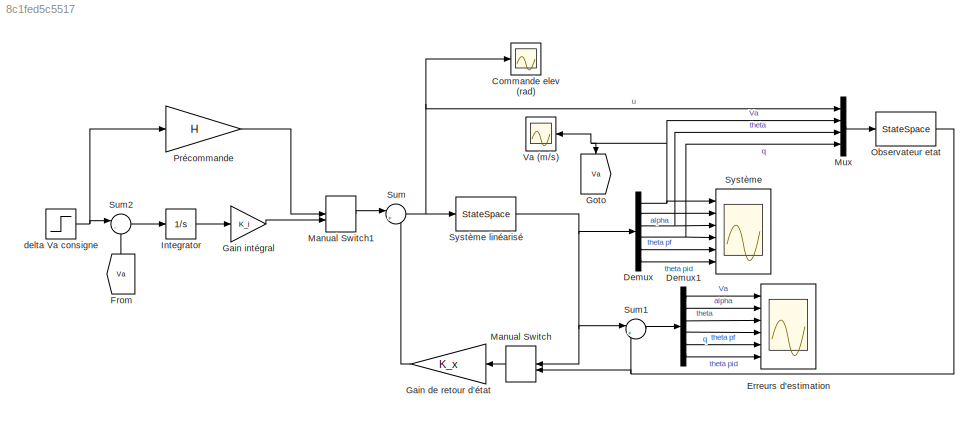
MODEL slx_8c1fed5c5517
KIND model
CONFIG AbsTol = auto
CONFIG EnableMultiTasking = off
CONFIG FixedStep = auto
CONFIG MaxStep = auto
CONFIG MinStep = auto
CONFIG RelTol = 1e-3
CONFIG SampleTimeConstraint = Unconstrained
CONFIG Solver = VariableStepAuto
CONFIG SolverName = VariableStepAuto
CONFIG StartTime = 0.0
CONFIG StopTime = 7
BLOCK [Scope] Commande elev (rad)
  Floating = off
  NumInputPorts = 1
  Ports = [1]
  ScopeSpecificationString = Simulink.scopes.TimeScopeBlockCfg('CurrentConfiguration', extmgr.ConfigurationSet(extmgr.Configuration('Core','General UI',true),extmgr.Configuration('Core','Source UI',true),extmgr.Configuration('Sources','WiredSimulink',true,'DataLoggingVariableName','ScopeData1'),extmgr.Configuration('Visuals','Time Domain',true,'SerializedDisplays',{struct('MinYLimReal','-56.58996','MaxYLimReal','14.65226','YL...<+1399ch>
BLOCK [Demux] Demux
  DisplayOption = bar
  Outputs = 6
  Ports = [1, 6]
BLOCK [Demux] Demux1
  DisplayOption = bar
  Outputs = 6
  Ports = [1, 6]
BLOCK [Scope] Erreurs d'estimation
  Floating = off
  NumInputPorts = 6
  Ports = [6]
  ScopeSpecificationString = Simulink.scopes.TimeScopeBlockCfg('CurrentConfiguration', extmgr.ConfigurationSet(extmgr.Configuration('Core','General UI',true,'FigureColor',[1 1 1]),extmgr.Configuration('Core','Source UI',true),extmgr.Configuration('Sources','WiredSimulink',true,'DataLoggingVariableName','ScopeData1'),extmgr.Configuration('Visuals','Time Domain',true,'SerializedDisplays',{struct('MinYLimReal','-1.68447','MaxYLi...<+2196ch>
BLOCK [From] From
  GotoTag = Va
BLOCK [Gain] Gain de retour d'état
  Gain = K_x
  Multiplication = Matrix(K*u) (u vector)
  OutDataTypeStr = Inherit: Inherit via internal rule
  ParamDataTypeStr = Inherit: Inherit via internal rule
  SaturateOnIntegerOverflow = off
BLOCK [Gain] Gain intégral
  Gain = K_i
  OutDataTypeStr = Inherit: Inherit via internal rule
  ParamDataTypeStr = Inherit: Inherit via internal rule
  SaturateOnIntegerOverflow = off
BLOCK [Goto] Goto
  GotoTag = Va
BLOCK [Integrator] Integrator
  Ports = [1, 1]
BLOCK [ManualSwitch] Manual Switch
BLOCK [ManualSwitch] Manual Switch1
BLOCK [Mux] Mux
  DisplayOption = bar
  Ports = [4, 1]
BLOCK [StateSpace] Observateur etat
  A = A6-L6*Cobs
  B = [B6, L6]
  C = eye(6)
  D = zeros(6,4)
  InitialCondition = 0
  Ports = [1, 1]
BLOCK [Gain] Précommande
  Gain = H
  OutDataTypeStr = Inherit: Inherit via internal rule
  ParamDataTypeStr = Inherit: Inherit via internal rule
  SaturateOnIntegerOverflow = off
BLOCK [Sum] Sum
  IconShape = round
  InputSameDT = off
  Inputs = |+-
  OutDataTypeStr = Inherit: Inherit via internal rule
  Ports = [2, 1]
  SaturateOnIntegerOverflow = off
BLOCK [Sum] Sum1
  IconShape = round
  InputSameDT = off
  Inputs = |+-
  OutDataTypeStr = Inherit: Inherit via internal rule
  Ports = [2, 1]
  SaturateOnIntegerOverflow = off
BLOCK [Sum] Sum2
  IconShape = round
  InputSameDT = off
  Inputs = |-+
  OutDataTypeStr = Inherit: Inherit via internal rule
  Ports = [2, 1]
  SaturateOnIntegerOverflow = off
BLOCK [Scope] Système
  Floating = off
  NumInputPorts = 6
  Ports = [6]
  ScopeSpecificationString = Simulink.scopes.TimeScopeBlockCfg('CurrentConfiguration', extmgr.ConfigurationSet(extmgr.Configuration('Core','General UI',true,'FigureColor',[1 1 1]),extmgr.Configuration('Core','Source UI',true),extmgr.Configuration('Sources','WiredSimulink',true),extmgr.Configuration('Visuals','Time Domain',true,'SerializedDisplays',{struct('MinYLimReal','-3.99798','MaxYLimReal','5.46423','YLabelReal','','MinYL...<+2156ch>
BLOCK [StateSpace] Système linéarisé
  A = A6
  B = B6
  C = C6
  D = zeros(6,1)
  InitialCondition = rand(6,1)
  Ports = [1, 1]
BLOCK [Scope] Va (m//s)
  Floating = off
  NumInputPorts = 1
  Ports = [1]
  ScopeSpecificationString = Simulink.scopes.TimeScopeBlockCfg('CurrentConfiguration', extmgr.ConfigurationSet(extmgr.Configuration('Core','General UI',true,'FigureColor',[1 1 1]),extmgr.Configuration('Core','Source UI',true),extmgr.Configuration('Sources','WiredSimulink',true,'DataLoggingVariableName','ScopeData1'),extmgr.Configuration('Visuals','Time Domain',true,'SerializedDisplays',{struct('MinYLimReal','-0.44586','MaxYLi...<+1860ch>
BLOCK [Step] delta Va consigne
  After = 3
  SampleTime = 0
LINE Demux1:1 -> Erreurs d'estimation:1
LINE Demux1:2 -> Erreurs d'estimation:2
LINE Demux1:3 -> Erreurs d'estimation:3
LINE Demux1:4 -> Erreurs d'estimation:4
LINE Demux1:5 -> Erreurs d'estimation:5
LINE Demux1:6 -> Erreurs d'estimation:6
NET Demux:1 -> Goto:1, Mux:2, Système:1, Va (m//s):1
LINE Demux:2 -> Système:2
NET Demux:3 -> Mux:3, Système:3
NET Demux:4 -> Mux:4, Système:4
LINE Demux:5 -> Système:5
LINE Demux:6 -> Système:6
LINE From:1 -> Sum2:2
LINE Gain de retour d'état:1 -> Sum:2
LINE Gain intégral:1 -> Manual Switch1:2
LINE Integrator:1 -> Gain intégral:1
LINE Manual Switch1:1 -> Sum:1
LINE Manual Switch:1 -> Gain de retour d'état:1
LINE Mux:1 -> Observateur etat:1
NET Observateur etat:1 -> Manual Switch:2, Sum1:2
LINE Précommande:1 -> Manual Switch1:1
LINE Sum1:1 -> Demux1:1
LINE Sum2:1 -> Integrator:1
NET Sum:1 -> Commande elev (rad):1, Mux:1, Système linéarisé:1
NET Système linéarisé:1 -> Demux:1, Manual Switch:1, Sum1:1
NET delta Va consigne:1 -> Précommande:1, Sum2:1
note: NET lines group one-source signal fan-out (src -> all destinations, sorted); 1:1 wires keep LINE
